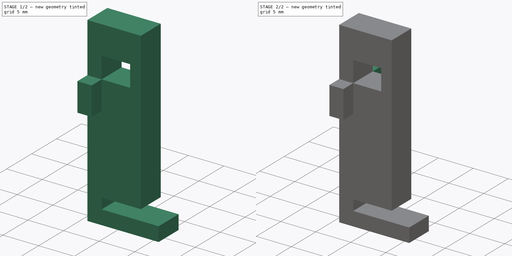
[diagram: build sequence overview — one tinted view per stage of 2, left to right]
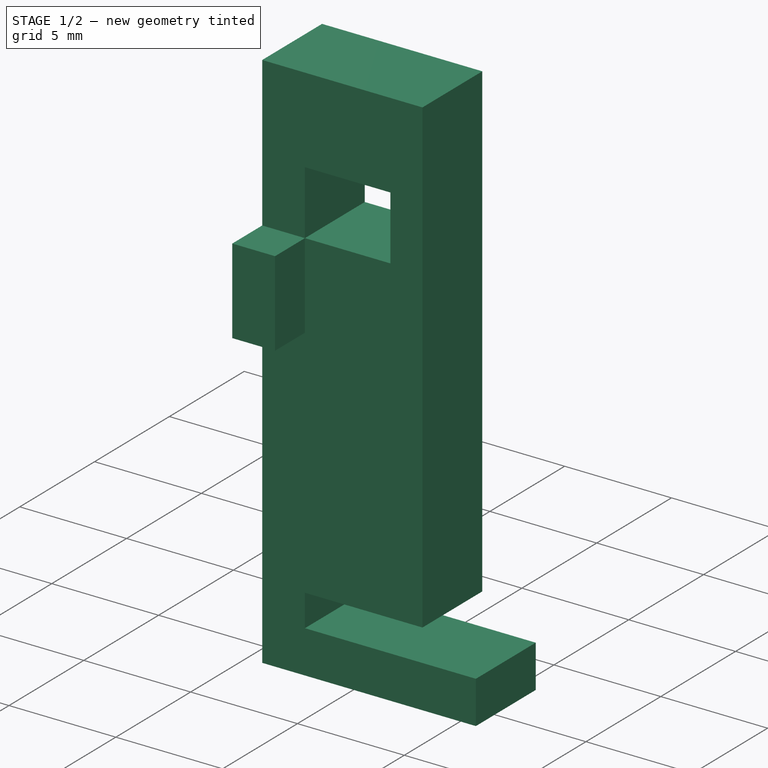
[diagram: stage 1 of 2 — iso view after this stage's code; geometry added in this stage tinted green]
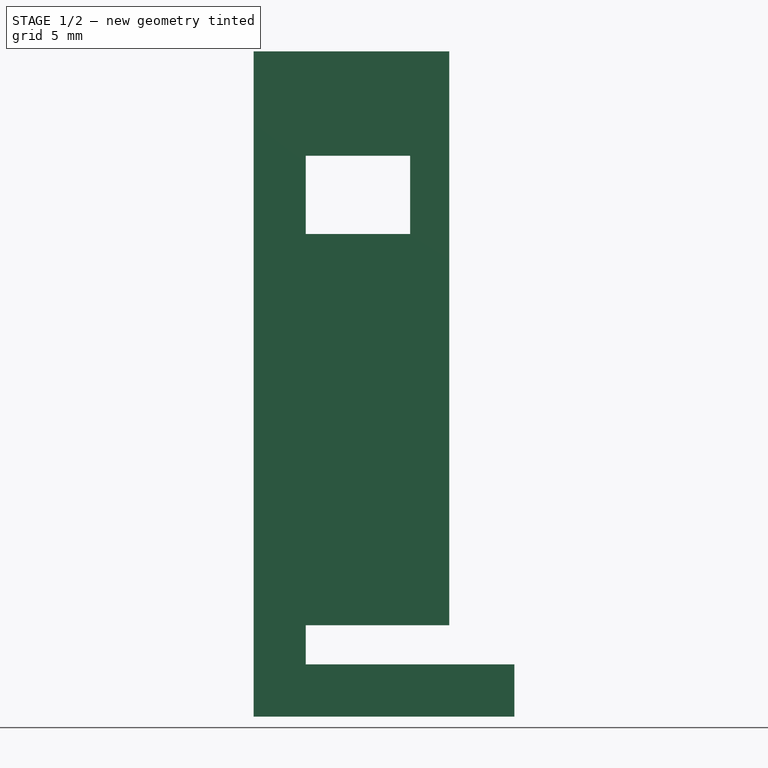
[diagram: stage 1 of 2 — front view after this stage's code; geometry added in this stage tinted green]
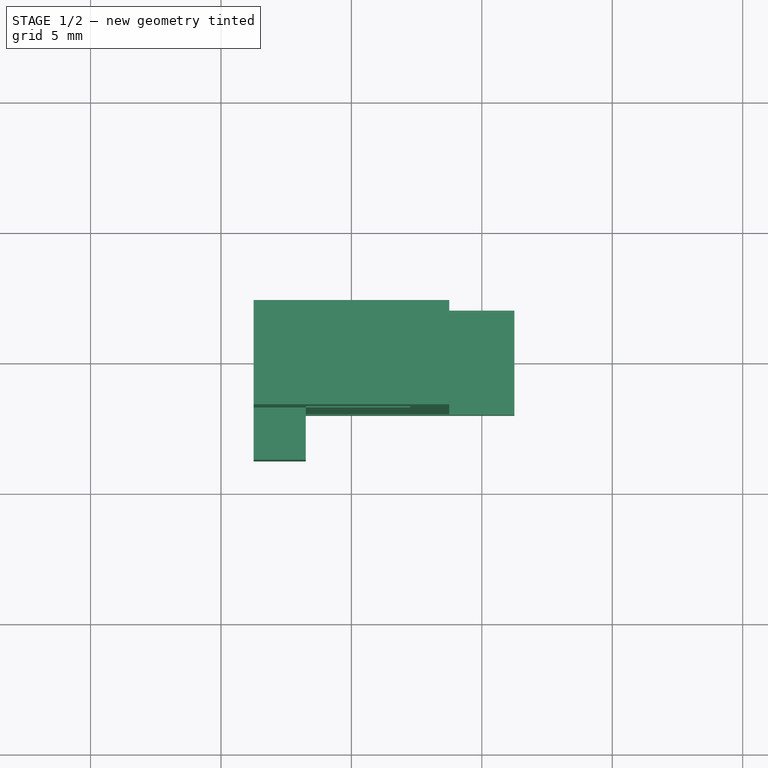
[diagram: stage 1 of 2 — top view after this stage's code; geometry added in this stage tinted green]
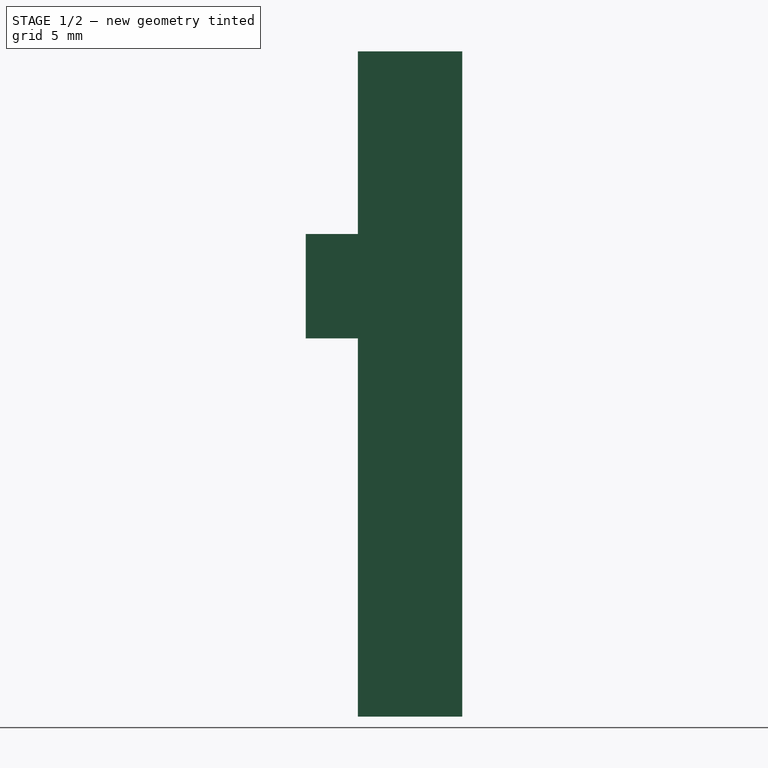
[diagram: stage 1 of 2 — right view after this stage's code; geometry added in this stage tinted green]
FCSTD DOCUMENT  (FreeCAD 0.20R29177 (Git))
Label: key_mount
License: All rights reserved
LicenseURL: http://en.wikipedia.org/wiki/All_rights_reserved
objects: Sketcher::SketchObject×2, PartDesign::Pad×2, PartDesign::Mirrored×1, PartDesign::Body×1
note: 8 computed .brp shape members not serialized (recipe doc carries the construction recipe); baked Part::Feature solids carry a one-line shape summary decoded from their .brp

FEATURE [Sketcher::SketchObject] Sketch002
  FullyConstrained = true
  MapMode = 5
  Placement = pos=(0,2,0) rot=(1,0,0;1.5708rad)
  sketch-geometry (15):
    g0: LineSegment StartX=3.75 StartY=0 StartZ=0 EndX=3.75 EndY=22 EndZ=0
    g1: LineSegment StartX=3.75 StartY=22 StartZ=0 EndX=3.75 EndY=22 EndZ=0
    g2: LineSegment StartX=2.25 StartY=15 StartZ=0 EndX=-1.75 EndY=15 EndZ=0
    g3: LineSegment StartX=-1.75 StartY=15 StartZ=0 EndX=-1.75 EndY=18 EndZ=0
    g4: LineSegment StartX=-1.75 StartY=18 StartZ=0 EndX=2.25 EndY=18 EndZ=0
    g5: LineSegment StartX=2.25 StartY=22 StartZ=0 EndX=-3.75 EndY=22 EndZ=0
    g6: LineSegment StartX=-3.75 StartY=22 StartZ=0 EndX=-3.75 EndY=0 EndZ=0
    g7: LineSegment StartX=2.25 StartY=22 StartZ=0 EndX=3.75 EndY=22 EndZ=0
    g8: LineSegment StartX=2.25 StartY=18 StartZ=0 EndX=2.25 EndY=15 EndZ=0
    g9: LineSegment StartX=-3.75 StartY=0 StartZ=0 EndX=-3.75 EndY=-3.5 EndZ=0
    g10: LineSegment StartX=-3.75 StartY=-3.5 StartZ=0 EndX=6.25 EndY=-3.5 EndZ=0
    g11: LineSegment StartX=6.25 StartY=-3.5 StartZ=0 EndX=6.25 EndY=-1.5 EndZ=0
    g12: LineSegment StartX=6.25 StartY=-1.5 StartZ=0 EndX=-1.75 EndY=-1.5 EndZ=0
    g13: LineSegment StartX=-1.75 StartY=-1.5 StartZ=0 EndX=-1.75 EndY=0 EndZ=0
    g14: LineSegment StartX=-1.75 StartY=0 StartZ=0 EndX=3.75 EndY=0 EndZ=0
  constraints (45):
    c: Vertical(g0)
    c: Coincident(g0,g1)
    c: Horizontal(g1)
    c: Horizontal(g2)
    c: Coincident(g2,g3)
    c: Vertical(g3)
    c: Coincident(g3,g4)
    c: Horizontal(g4)
    c: Horizontal(g5)
    c: Coincident(g5,g6)
    c: PointOnObject(g6,g-1)
    c: Vertical(g6)
    c: DistanceY(g3,g3) = 3
    c: DistanceY(g-1,g2) = 15
    c: DistanceY(g0,g0) = 22
    c: DistanceY(g6,g6) = 22
    c: DistanceX(g4,g4) = 4
    c: DistanceX(g5,g1) = 1.5
    c: DistanceX(g3,g-1) = 1.75
    c: DistanceX(g5,g5) = 6
    c: Coincident(g7,g5)
    c: Coincident(g7,g1)
    c: Equal(g4,g2)
    c: Coincident(g8,g4)
    c: Coincident(g8,g2)
    c: DistanceX(g5,g0) = 7.5
    c: DistanceX(g5) = -3.75
    c: Coincident(g6,g9)
    c: Vertical(g9)
    c: Coincident(g9,g10)
    c: Horizontal(g10)
    c: Coincident(g10,g11)
    c: Vertical(g11)
    c: Coincident(g11,g12)
    c: Horizontal(g12)
    c: Coincident(g12,g13)
    c: PointOnObject(g13,g-1)
    c: Vertical(g13)
    c: Coincident(g13,g14)
    c: Coincident(g14,g0)
    c: Horizontal(g14)
    c: DistanceY(g13,g13) = 1.5
    c: DistanceY(g11,g11) = 2
    c: DistanceX(g12,g-1) = 1.75
    c: DistanceX(g10,g10) = 10
FEATURE [PartDesign::Pad] Pad002
  Direction = (0,-1,2e-16)
  Length = 4
  Length2 = 100
  Placement = pos=(0,2,0) rot=(1,0,0;1.5708rad)
  Profile = -> Sketch002
  Type = 0
FEATURE [Sketcher::SketchObject] Sketch
  FullyConstrained = true
  MapMode = 2
  Placement = pos=(0,2,0) rot=(1,0,0;1.5708rad)
  Support = -> [Pad002]
  sketch-geometry (4):
    g0: LineSegment StartX=-1.75 StartY=15 StartZ=0 EndX=-3.75 EndY=15 EndZ=0
    g1: LineSegment StartX=-3.75 StartY=15 StartZ=0 EndX=-3.75 EndY=11 EndZ=0
    g2: LineSegment StartX=-3.75 StartY=11 StartZ=0 EndX=-1.75 EndY=11 EndZ=0
    g3: LineSegment StartX=-1.75 StartY=11 StartZ=0 EndX=-1.75 EndY=15 EndZ=0
  constraints (12):
    c: Coincident(g0,g1)
    c: Coincident(g1,g2)
    c: Coincident(g2,g3)
    c: Coincident(g3,g0)
    c: Horizontal(g0)
    c: Horizontal(g2)
    c: Vertical(g1)
    c: Vertical(g3)
    c: DistanceX(g0,g0) = 2
    c: DistanceY(g3,g3) = 4
    c: DistanceY(g-1,g1) = 11
    c: DistanceX(g1,g-1) = 3.75
FEATURE [PartDesign::Pad] Pad
  BaseFeature = -> Pad002
  Direction = (0,-1,2e-16)
  Length = 6
  Length2 = 10
  Placement = pos=(0,2,0) rot=(1,0,0;1.5708rad)
  Profile = -> Sketch
  ReferenceAxis = -> Sketch [N_Axis]
  Type = 0
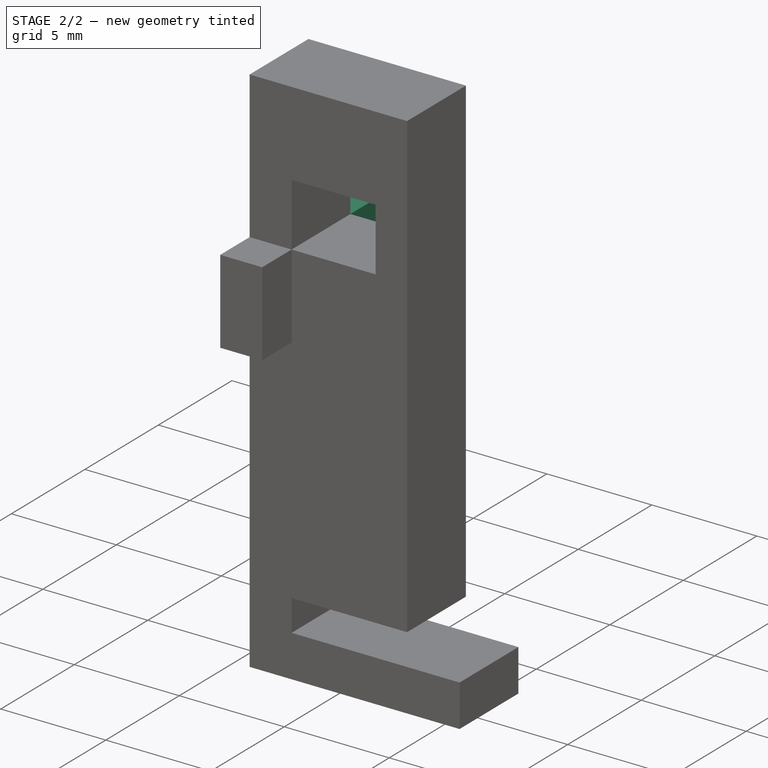
[diagram: stage 2 of 2 — iso view after this stage's code; geometry added in this stage tinted green]
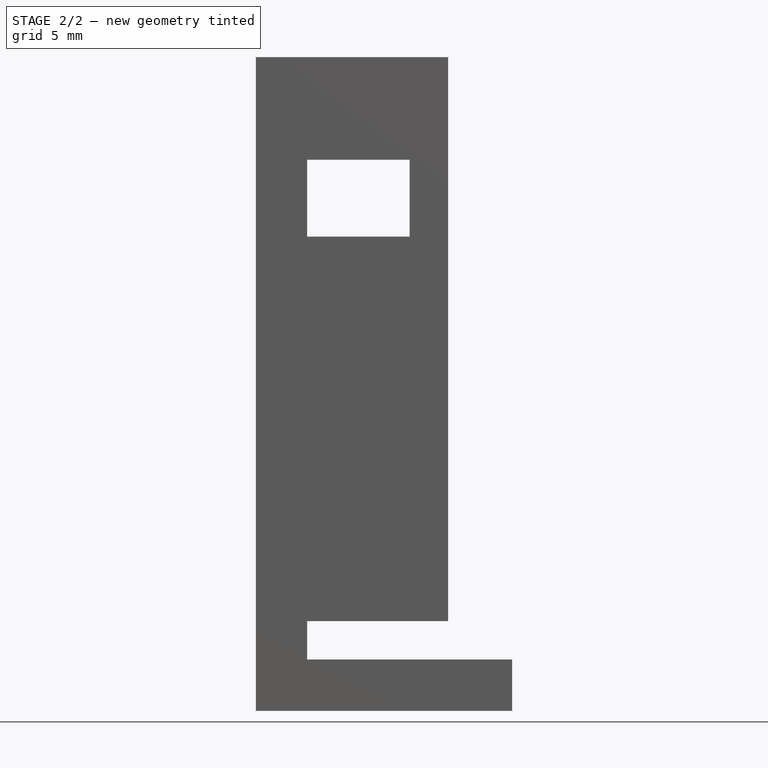
[diagram: stage 2 of 2 — front view after this stage's code; geometry added in this stage tinted green]
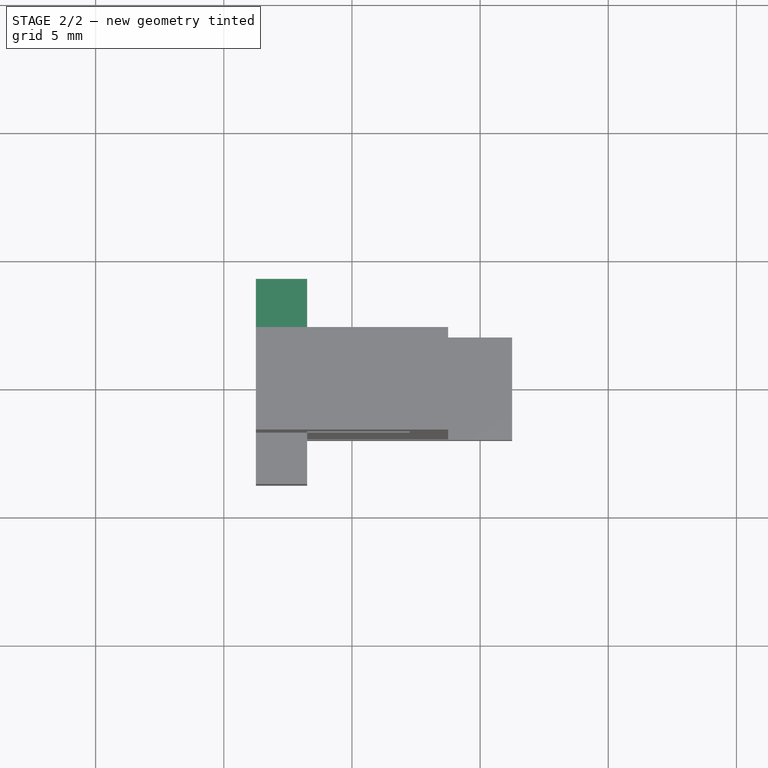
[diagram: stage 2 of 2 — top view after this stage's code; geometry added in this stage tinted green]
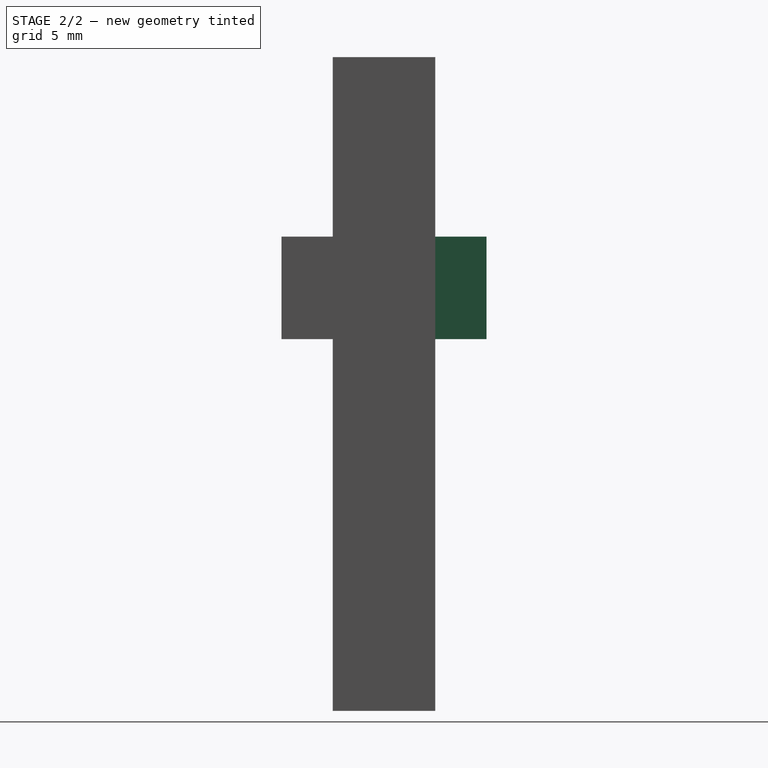
[diagram: stage 2 of 2 — right view after this stage's code; geometry added in this stage tinted green]
FEATURE [PartDesign::Mirrored] Mirrored
  BaseFeature = -> Pad
  MirrorPlane = -> XZ_Plane
  Originals = -> [Pad]
  Placement = pos=(0,2,0) rot=(1,0,0;1.5708rad)
FEATURE [PartDesign::Body] Body
  Group = -> [Sketch002,Pad002,Sketch,Pad,Mirrored]
  Origin = -> Origin
  Tip = -> Mirrored
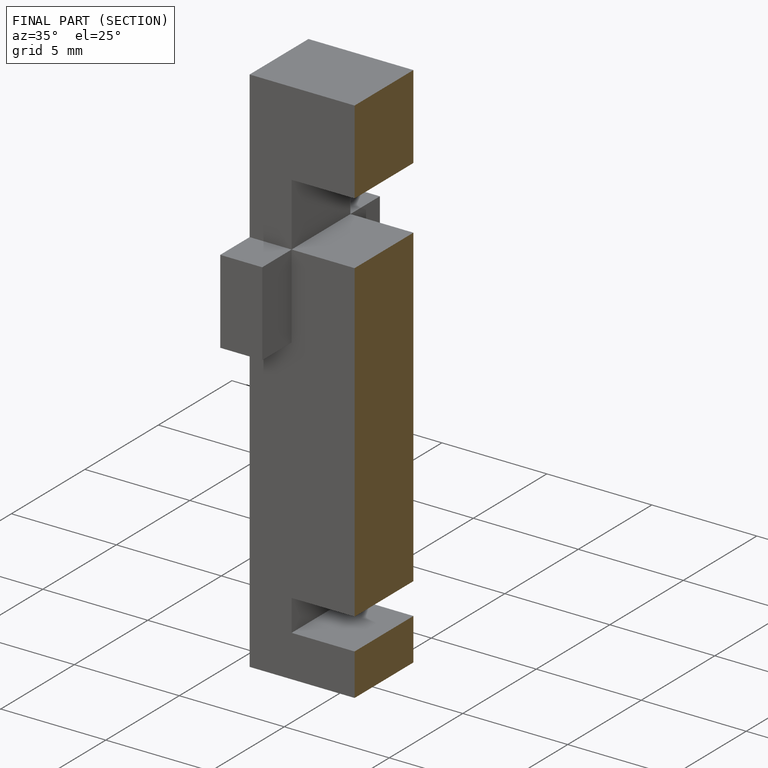
[diagram: finished part — half-section view (interior)]
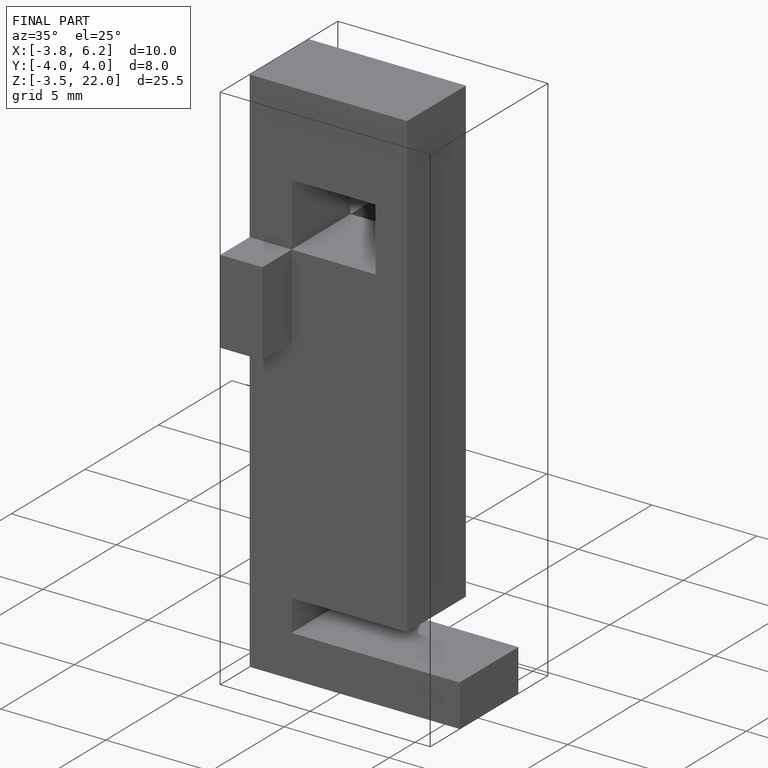
[diagram: finished part — iso view with bounding-box wireframe]
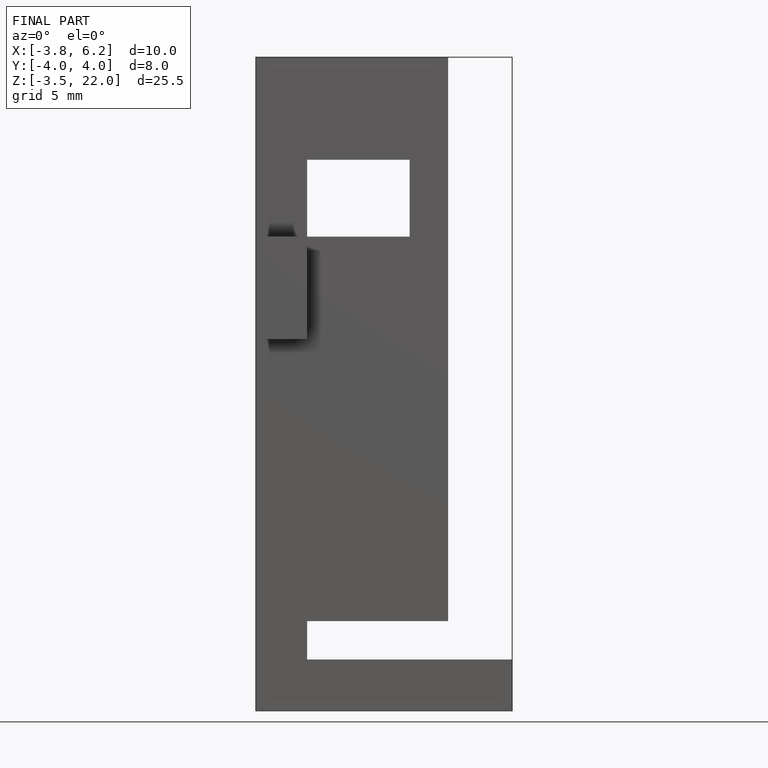
[diagram: finished part — front view with bounding-box wireframe]
